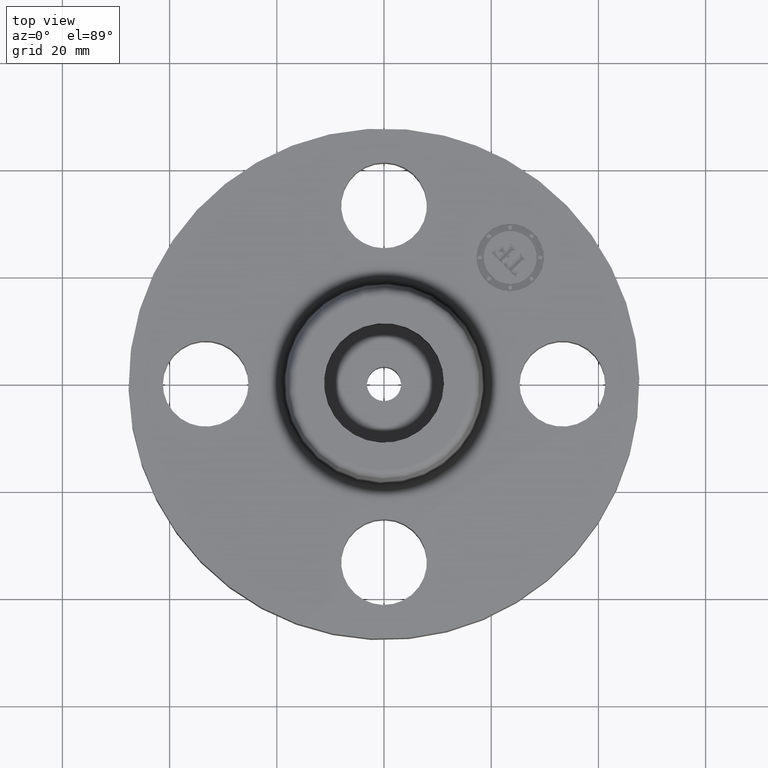
[diagram: clean part render]
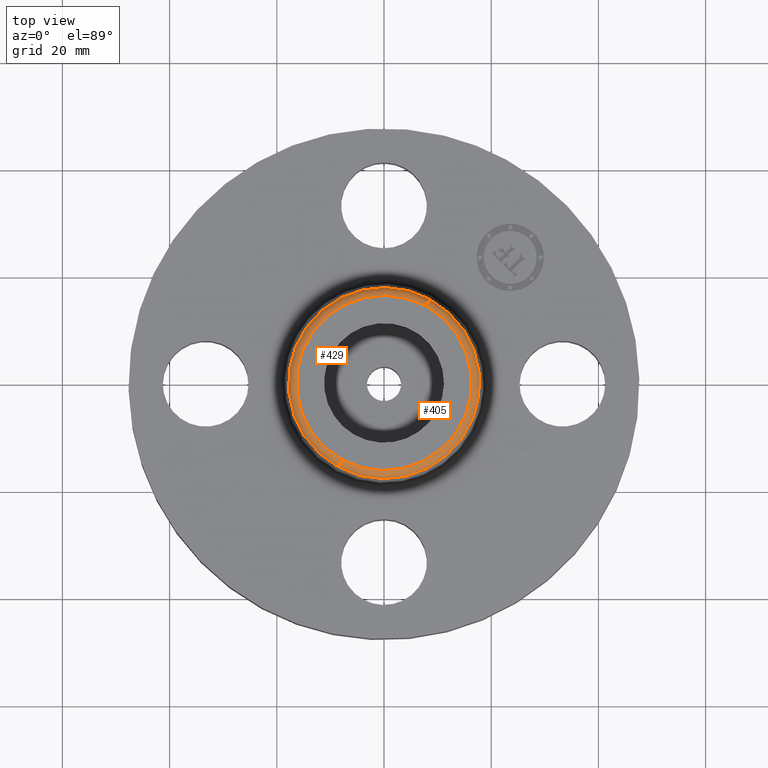
[diagram: same view with one multi-face feature highlighted, each face labeled with its STEP entity id]
A machine part, top view. The highlighted faces form ONE feature: a constant-radius fillet chain: 2 tangent blend faces with common blend radius 1.524 mm. The faces share edges in the B-rep.
Their STEP definitions:
[1] entity #429 (Torus):
#249=AXIS2_PLACEMENT_3D('Circle Axis2P3D',#247,#248,$) ;
#391=AXIS2_PLACEMENT_3D('Circle Axis2P3D',#389,#390,$) ;
#396=AXIS2_PLACEMENT_3D('Circle Axis2P3D',#394,#395,$) ;
#416=AXIS2_PLACEMENT_3D('Torus Axis2P3D',#413,#414,#415) ;
#420=AXIS2_PLACEMENT_3D('Circle Axis2P3D',#418,#419,$) ;
#242=CARTESIAN_POINT('Vertex',(0.308380595934,0.564486894472,0.880000000003)) ;
#244=CARTESIAN_POINT('Vertex',(-0.308380595934,-0.564486894472,0.880000000003)) ;
#247=CARTESIAN_POINT('Axis2P3D Location',(-4.36653687836E-011,1.9637275183E-011,0.880000000004)) ;
#384=CARTESIAN_POINT('Vertex',(0.336709115179,0.616341901123,0.830418890663)) ;
#386=CARTESIAN_POINT('Vertex',(-0.336709115179,-0.616341901124,0.830418890663)) ;
#389=CARTESIAN_POINT('Axis2P3D Location',(0.308380595934,0.564486894472,0.820000000003)) ;
#394=CARTESIAN_POINT('Axis2P3D Location',(-0.308380595934,-0.564486894472,0.820000000003)) ;
#413=CARTESIAN_POINT('Axis2P3D Location',(0.,0.,0.820000000003)) ;
#418=CARTESIAN_POINT('Axis2P3D Location',(0.,0.,0.830418890663)) ;
#248=DIRECTION('Axis2P3D Direction',(0.,0.,-0.0393700787402)) ;
#390=DIRECTION('Axis2P3D Direction',(-0.0345504945626,0.0188750212049,0.)) ;
#395=DIRECTION('Axis2P3D Direction',(0.0345504945626,-0.0188750212049,0.)) ;
#414=DIRECTION('Axis2P3D Direction',(0.,0.,-0.0393700787402)) ;
#415=DIRECTION('Axis2P3D XDirection',(-0.0188750212049,-0.0345504945626,0.)) ;
#419=DIRECTION('Axis2P3D Direction',(-0.,0.,-0.0393700787402)) ;
#424=ORIENTED_EDGE('',*,*,#422,.F.) ;
#425=ORIENTED_EDGE('',*,*,#398,.T.) ;
#426=ORIENTED_EDGE('',*,*,#251,.T.) ;
#427=ORIENTED_EDGE('',*,*,#393,.F.) ;
#429=ADVANCED_FACE('PartBody',(#428),#417,.T.) ;
#250=CIRCLE('generated circle',#249,0.643229388281) ;
#392=CIRCLE('generated circle',#391,0.0600000000002) ;
#397=CIRCLE('generated circle',#396,0.0600000000002) ;
#421=CIRCLE('generated circle',#420,0.702317853486) ;
#417=TOROIDAL_SURFACE('homeo Torus',#416,0.643229388305,0.0600000000002) ;
#251=EDGE_CURVE('',#245,#243,#250,.T.) ;
#393=EDGE_CURVE('',#385,#243,#392,.F.) ;
#398=EDGE_CURVE('',#387,#245,#397,.F.) ;
#422=EDGE_CURVE('',#387,#385,#421,.T.) ;
#423=EDGE_LOOP('',(#424,#425,#426,#427)) ;
#428=FACE_OUTER_BOUND('',#423,.T.) ;
#243=VERTEX_POINT('',#242) ;
#245=VERTEX_POINT('',#244) ;
#385=VERTEX_POINT('',#384) ;
#387=VERTEX_POINT('',#386) ;
[2] entity #405 (Torus):
#240=AXIS2_PLACEMENT_3D('Circle Axis2P3D',#238,#239,$) ;
#378=AXIS2_PLACEMENT_3D('Torus Axis2P3D',#375,#376,#377) ;
#382=AXIS2_PLACEMENT_3D('Circle Axis2P3D',#380,#381,$) ;
#391=AXIS2_PLACEMENT_3D('Circle Axis2P3D',#389,#390,$) ;
#396=AXIS2_PLACEMENT_3D('Circle Axis2P3D',#394,#395,$) ;
#238=CARTESIAN_POINT('Axis2P3D Location',(4.36653687836E-011,-2.8071753146E-011,0.880000000004)) ;
#242=CARTESIAN_POINT('Vertex',(0.308380595934,0.564486894472,0.880000000003)) ;
#244=CARTESIAN_POINT('Vertex',(-0.308380595934,-0.564486894472,0.880000000003)) ;
#375=CARTESIAN_POINT('Axis2P3D Location',(0.,0.,0.820000000003)) ;
#380=CARTESIAN_POINT('Axis2P3D Location',(0.,0.,0.830418890663)) ;
#384=CARTESIAN_POINT('Vertex',(0.336709115179,0.616341901123,0.830418890663)) ;
#386=CARTESIAN_POINT('Vertex',(-0.336709115179,-0.616341901124,0.830418890663)) ;
#389=CARTESIAN_POINT('Axis2P3D Location',(0.308380595934,0.564486894472,0.820000000003)) ;
#394=CARTESIAN_POINT('Axis2P3D Location',(-0.308380595934,-0.564486894472,0.820000000003)) ;
#239=DIRECTION('Axis2P3D Direction',(0.,0.,-0.0393700787402)) ;
#376=DIRECTION('Axis2P3D Direction',(0.,0.,-0.0393700787402)) ;
#377=DIRECTION('Axis2P3D XDirection',(0.0188750212049,0.0345504945626,0.)) ;
#381=DIRECTION('Axis2P3D Direction',(-0.,0.,-0.0393700787402)) ;
#390=DIRECTION('Axis2P3D Direction',(-0.0345504945626,0.0188750212049,0.)) ;
#395=DIRECTION('Axis2P3D Direction',(0.0345504945626,-0.0188750212049,0.)) ;
#400=ORIENTED_EDGE('',*,*,#388,.F.) ;
#401=ORIENTED_EDGE('',*,*,#393,.T.) ;
#402=ORIENTED_EDGE('',*,*,#246,.T.) ;
#403=ORIENTED_EDGE('',*,*,#398,.F.) ;
#405=ADVANCED_FACE('PartBody',(#404),#379,.T.) ;
#241=CIRCLE('generated circle',#240,0.643229388281) ;
#383=CIRCLE('generated circle',#382,0.702317853486) ;
#392=CIRCLE('generated circle',#391,0.0600000000002) ;
#397=CIRCLE('generated circle',#396,0.0600000000002) ;
#379=TOROIDAL_SURFACE('homeo Torus',#378,0.643229388305,0.0600000000002) ;
#246=EDGE_CURVE('',#243,#245,#241,.T.) ;
#388=EDGE_CURVE('',#385,#387,#383,.T.) ;
#393=EDGE_CURVE('',#385,#243,#392,.F.) ;
#398=EDGE_CURVE('',#387,#245,#397,.F.) ;
#399=EDGE_LOOP('',(#400,#401,#402,#403)) ;
#404=FACE_OUTER_BOUND('',#399,.T.) ;
#243=VERTEX_POINT('',#242) ;
#245=VERTEX_POINT('',#244) ;
#385=VERTEX_POINT('',#384) ;
#387=VERTEX_POINT('',#386) ;